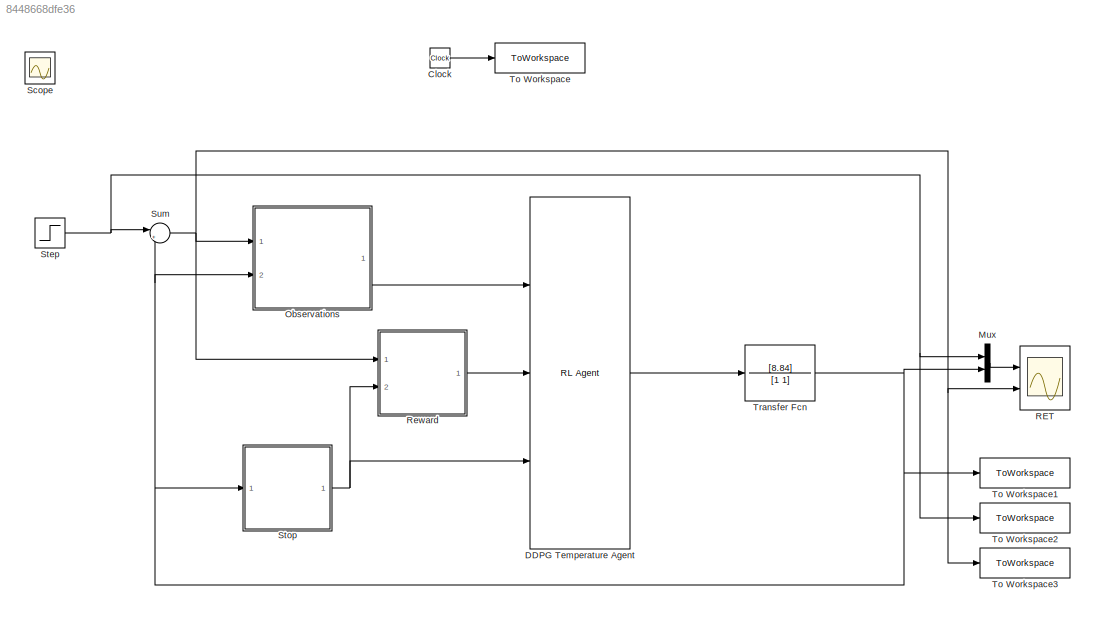
MODEL slx_8448668dfe36
KIND model
CONFIG AbsTol = auto
CONFIG EnableMultiTasking = off
CONFIG FixedStep = auto
CONFIG MaxStep = auto
CONFIG MinStep = auto
CONFIG RelTol = 1e-3
CONFIG SampleTimeConstraint = Unconstrained
CONFIG SolverName = VariableStepAuto
CONFIG StartTime = 0.0
CONFIG StopTime = 200
BLOCK [Clock] Clock
BLOCK [Reference] DDPG Temperature Agent  REF=rllib/RL Agent
  Ports = [3, 1]
  SourceBlock = rllib/RL Agent
  SourceProductBaseCode = RL
  SourceType = RL Agent
BLOCK [Mux] Mux
  DisplayOption = bar
  Inputs = 2
  Ports = [2, 1]
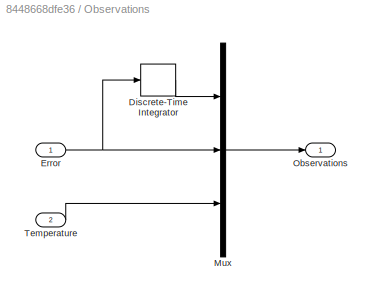
BLOCK [SubSystem] Observations
  Ports = [2, 1]
  RequestExecContextInheritance = off
BLOCK [DiscreteIntegrator] Observations/Discrete-Time Integrator
  ICPrevOutput = DiscIntNeverNeededParam
  ICPrevScaledInput = DiscIntNeverNeededParam
  InitialConditionSetting = Auto
  Ports = [1, 1]
  SampleTime = -1
BLOCK [Inport] Observations/Error
BLOCK [Mux] Observations/Mux
  DisplayOption = bar
  Inputs = 3
  Ports = [3, 1]
BLOCK [Outport] Observations/Observations
BLOCK [Inport] Observations/Temperature
  Port = 2
BLOCK [Scope] RET
  Floating = off
  NumInputPorts = 2
  Ports = [2]
  ScopeSpecificationString = Simulink.scopes.TimeScopeBlockCfg('CurrentConfiguration', extmgr.ConfigurationSet(extmgr.Configuration('Core','General UI',true),extmgr.Configuration('Core','Source UI',true),extmgr.Configuration('Sources','WiredSimulink',true),extmgr.Configuration('Visuals','Time Domain',true,'SerializedDisplays',{struct('MinYLimReal','-3.75069','MaxYLimReal','33.75617','YLabelReal','','MinYLimMag','0.00000','Max...<+2014ch>
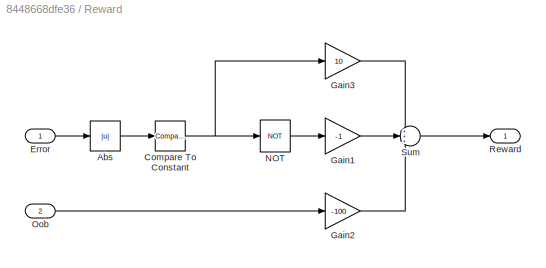
BLOCK [SubSystem] Reward
  Ports = [2, 1]
  RequestExecContextInheritance = off
BLOCK [Abs] Reward/Abs
  SaturateOnIntegerOverflow = off
BLOCK [Reference] Reward/Compare To Constant  REF=simulink/Logic and Bit
Operations/Compare
To Constant
  Ports = [1, 1]
  SourceBlock = simulink/Logic and Bit\nOperations/Compare\nTo Constant
  SourceProductBaseCode = SL
  SourceType = Compare To Constant
BLOCK [Inport] Reward/Error
BLOCK [Gain] Reward/Gain1
  Gain = -1
BLOCK [Gain] Reward/Gain2
  Gain = -100
BLOCK [Gain] Reward/Gain3
  Gain = 10
BLOCK [Logic] Reward/NOT
  AllPortsSameDT = off
  IconShape = distinctive
  Operator = NOT
  OutDataTypeStr = boolean
  Ports = [1, 1]
BLOCK [Inport] Reward/Oob
  Port = 2
BLOCK [Outport] Reward/Reward
BLOCK [Sum] Reward/Sum
  Inputs = +++
  Ports = [3, 1]
BLOCK [Scope] Scope
  Floating = off
  IOType = viewer
  NumInputPorts = 1
  Ports = []
  ScopeSpecificationString = Simulink.scopes.TimeScopeBlockCfg('CurrentConfiguration', extmgr.ConfigurationSet(extmgr.Configuration('Core','General UI',true),extmgr.Configuration('Core','Source UI',true),extmgr.Configuration('Sources','WiredSimulink',true,'DataLoggingVariableName','ScopeData1'),extmgr.Configuration('Visuals','Time Domain',true,'SerializedDisplays',{struct('MinYLimReal','1.47879','MaxYLimReal','3.62697','YLabe...<+1407ch>
BLOCK [Step] Step
  After = 25
  Before = 22.1163
  SampleTime = 0
  Time = 100
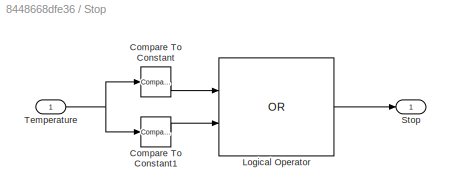
BLOCK [SubSystem] Stop
  Ports = [1, 1]
  RequestExecContextInheritance = off
BLOCK [Reference] Stop/Compare To Constant  REF=simulink/Logic and Bit
Operations/Compare
To Constant
  Ports = [1, 1]
  SourceBlock = simulink/Logic and Bit\nOperations/Compare\nTo Constant
  SourceProductBaseCode = SL
  SourceType = Compare To Constant
BLOCK [Reference] Stop/Compare To Constant1  REF=simulink/Logic and Bit
Operations/Compare
To Constant
  Ports = [1, 1]
  SourceBlock = simulink/Logic and Bit\nOperations/Compare\nTo Constant
  SourceProductBaseCode = SL
  SourceType = Compare To Constant
BLOCK [Logic] Stop/Logical Operator
  AllPortsSameDT = off
  IconShape = distinctive
  Operator = OR
  OutDataTypeStr = boolean
  Ports = [2, 1]
BLOCK [Outport] Stop/Stop
BLOCK [Inport] Stop/Temperature
BLOCK [Sum] Sum
  Inputs = |+-
  Ports = [2, 1]
BLOCK [ToWorkspace] To Workspace
  FixptAsFi = on
  MaxDataPoints = inf
  Ports = [1]
  SampleTime = -1
  Save2DSignal = 2-D array (concatenate along first dimension)
  VariableName = t
BLOCK [ToWorkspace] To Workspace1
  FixptAsFi = on
  MaxDataPoints = inf
  Ports = [1]
  SampleTime = -1
  Save2DSignal = 2-D array (concatenate along first dimension)
  VariableName = Temperature
BLOCK [ToWorkspace] To Workspace2
  FixptAsFi = on
  MaxDataPoints = inf
  Ports = [1]
  SampleTime = -1
  Save2DSignal = 2-D array (concatenate along first dimension)
  VariableName = Reference
BLOCK [ToWorkspace] To Workspace3
  FixptAsFi = on
  MaxDataPoints = inf
  Ports = [1]
  SampleTime = -1
  Save2DSignal = 2-D array (concatenate along first dimension)
  VariableName = Error
BLOCK [TransferFcn] Transfer Fcn
  Denominator = [1 1]
  Numerator = [8.84]
LINE Clock:1 -> To Workspace:1
LINE DDPG Temperature Agent:1 -> Transfer Fcn:1
LINE Mux:1 -> RET:1
LINE Observations/Discrete-Time Integrator:1 -> Observations/Mux:1
NET Observations/Error:1 -> Observations/Discrete-Time Integrator:1, Observations/Mux:2
LINE Observations/Mux:1 -> Observations/Observations:1
LINE Observations/Temperature:1 -> Observations/Mux:3
LINE Observations:1 -> DDPG Temperature Agent:1
LINE Reward/Abs:1 -> Reward/Compare To Constant:1
NET Reward/Compare To Constant:1 -> Reward/Gain3:1, Reward/NOT:1
LINE Reward/Error:1 -> Reward/Abs:1
LINE Reward/Gain1:1 -> Reward/Sum:2
LINE Reward/Gain2:1 -> Reward/Sum:3
LINE Reward/Gain3:1 -> Reward/Sum:1
LINE Reward/NOT:1 -> Reward/Gain1:1
LINE Reward/Oob:1 -> Reward/Gain2:1
LINE Reward/Sum:1 -> Reward/Reward:1
LINE Reward:1 -> DDPG Temperature Agent:2
NET Step:1 -> Mux:1, Sum:1, To Workspace2:1
LINE Stop/Compare To Constant1:1 -> Stop/Logical Operator:2
LINE Stop/Compare To Constant:1 -> Stop/Logical Operator:1
LINE Stop/Logical Operator:1 -> Stop/Stop:1
NET Stop/Temperature:1 -> Stop/Compare To Constant1:1, Stop/Compare To Constant:1
NET Stop:1 -> DDPG Temperature Agent:3, Reward:2
NET Sum:1 -> Observations:1, RET:2, Reward:1, To Workspace3:1
NET Transfer Fcn:1 -> Mux:2, Observations:2, Stop:1, Sum:2, To Workspace1:1
note: NET lines group one-source signal fan-out (src -> all destinations, sorted); 1:1 wires keep LINE
